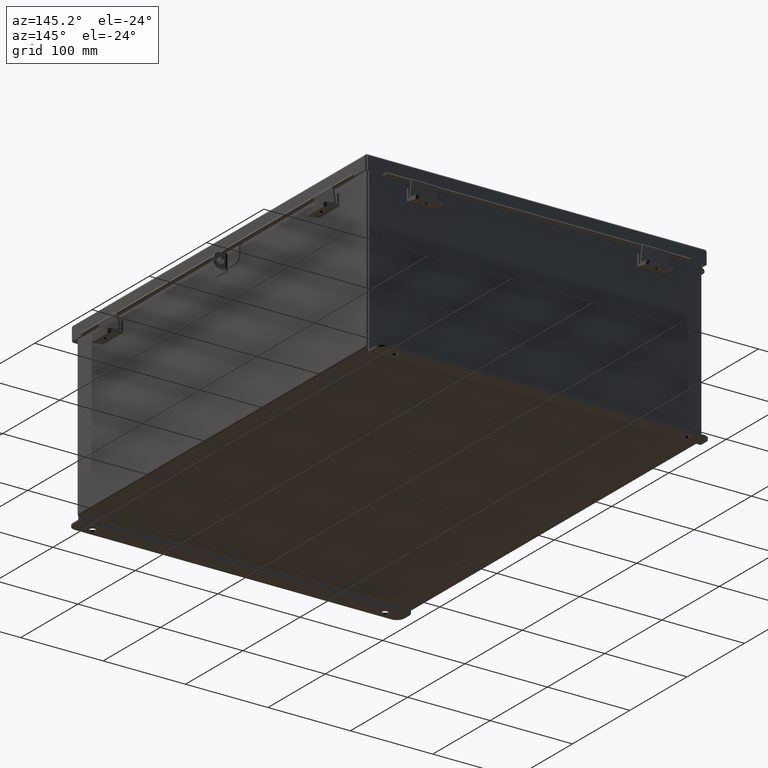
[diagram: clean part render]
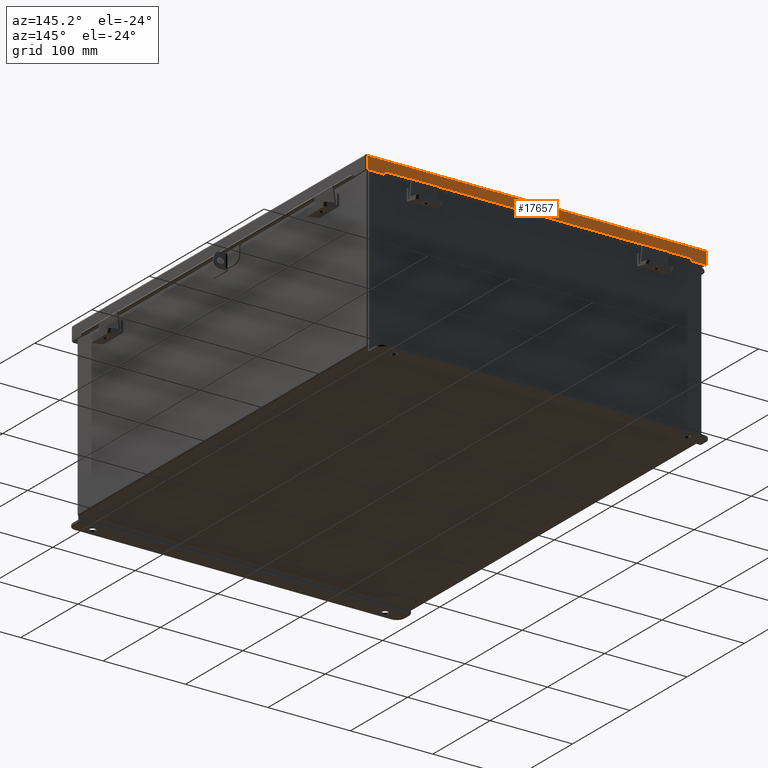
[diagram: same view with one face highlighted and labeled with its STEP entity id]
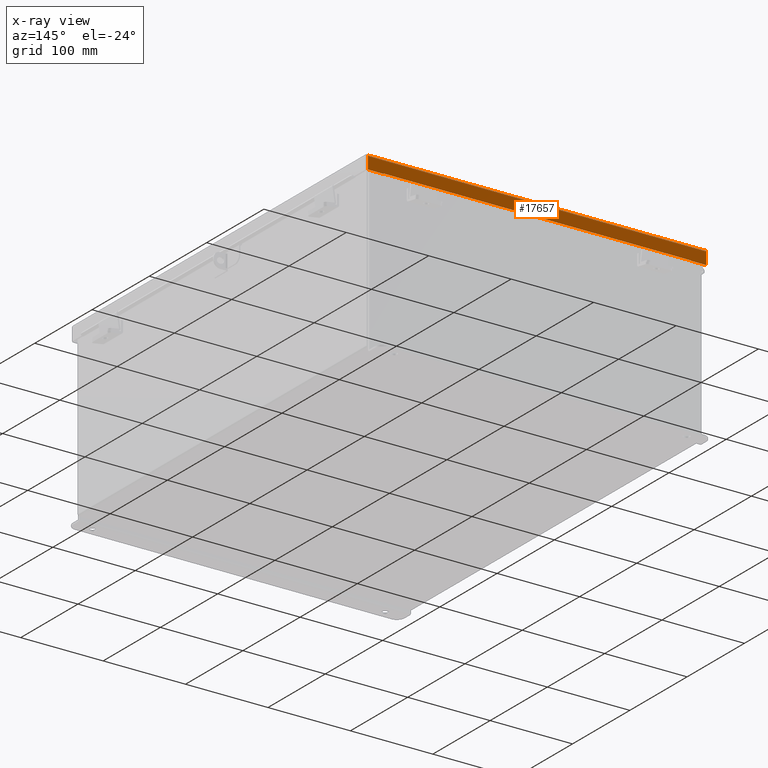
[diagram: x-ray of the same camera — body ghosted, the highlighted face saturated]
A machine part, auxiliary view. The second image highlights one B-rep face of the part: STEP entity #17657.
The next image is the same camera in x-ray: the body ghosted, the highlighted face saturated — about 0% of this face is hidden behind the body in this view.
In plain terms, the highlighted planar face has unit normal (-0, -1, -0).
Its self-contained STEP definition (entity closure, byte-faithful):
#336 = VERTEX_POINT ( 'NONE', #8786 ) ;
#386 = CARTESIAN_POINT ( 'NONE',  ( -7.324478932188124100, 10.15624999999998600, 0.5967115427318782100 ) ) ;
#499 = CARTESIAN_POINT ( 'NONE',  ( 8.074478932188135600, 10.15624999999998200, 0.01299999999999901400 ) ) ;
#624 = VERTEX_POINT ( 'NONE', #17983 ) ;
#649 = CARTESIAN_POINT ( 'NONE',  ( 0.0000000000000000000, 10.15624999999998200, -3.715313271383398100E-014 ) ) ;
#652 = LINE ( 'NONE', #7403, #19069 ) ;
#678 = EDGE_CURVE ( 'NONE', #2356, #9563, #6531, .T. ) ;
#1035 = DIRECTION ( 'NONE',  ( 1.000000000000000000, -2.239330294933626500E-032, -0.0000000000000000000 ) ) ;
#1370 = DIRECTION ( 'NONE',  ( -1.000000000000000000, -2.258600338820529900E-033, -0.0000000000000000000 ) ) ;
#2015 = EDGE_CURVE ( 'NONE', #624, #9563, #9717, .T. ) ;
#2145 = DIRECTION ( 'NONE',  ( 1.000000000000000000, 1.714005116931365200E-033, 4.186740220174599200E-018 ) ) ;
#2356 = VERTEX_POINT ( 'NONE', #499 ) ;
#2378 = LINE ( 'NONE', #16031, #11585 ) ;
#2473 = DIRECTION ( 'NONE',  ( 0.0000000000000000000, 3.569293475308526100E-015, 1.000000000000000000 ) ) ;
#2586 = EDGE_CURVE ( 'NONE', #3929, #2356, #2378, .T. ) ;
#2598 = CARTESIAN_POINT ( 'NONE',  ( -2.134256245050205600E-018, 10.15624999999998400, 0.6122999999999994000 ) ) ;
#2943 = VECTOR ( 'NONE', #14670, 39.37007874015748100 ) ;
#3929 = VERTEX_POINT ( 'NONE', #20326 ) ;
#4870 = VERTEX_POINT ( 'NONE', #21051 ) ;
#6531 = LINE ( 'NONE', #9438, #20337 ) ;
#6804 = LINE ( 'NONE', #386, #10838 ) ;
#7012 = CARTESIAN_POINT ( 'NONE',  ( -8.074478932188133800, 10.15624999999998400, 0.6122999999999994000 ) ) ;
#7403 = CARTESIAN_POINT ( 'NONE',  ( 7.324478932188133000, 10.15624999999998600, 0.6122999999999994000 ) ) ;
#7448 = CARTESIAN_POINT ( 'NONE',  ( -7.324478932188124100, 10.15624999999998400, 0.5967115427318782100 ) ) ;
#7543 = LINE ( 'NONE', #2598, #2943 ) ;
#7603 = DIRECTION ( 'NONE',  ( -2.477048074762977700E-032, -1.000000000000000000, 3.569293475308526100E-015 ) ) ;
#7639 = VERTEX_POINT ( 'NONE', #7012 ) ;
#8378 = VECTOR ( 'NONE', #2473, 39.37007874015748100 ) ;
#8725 = ORIENTED_EDGE ( 'NONE', *, *, #19770, .T. ) ;
#8786 = CARTESIAN_POINT ( 'NONE',  ( -7.324478932188130300, 10.15624999999998400, 0.6123000000000005100 ) ) ;
#8815 = ORIENTED_EDGE ( 'NONE', *, *, #2015, .T. ) ;
#9183 = CARTESIAN_POINT ( 'NONE',  ( -2.134256245050205600E-018, 10.15624999999998400, 0.6122999999999994000 ) ) ;
#9402 = VECTOR ( 'NONE', #1370, 39.37007874015748100 ) ;
#9438 = CARTESIAN_POINT ( 'NONE',  ( 8.074478932188135600, 10.15624999999998200, -1.092739197465705300E-015 ) ) ;
#9498 = EDGE_LOOP ( 'NONE', ( #21794, #8815, #10085, #14757, #18814, #8725, #9519, #19045 ) ) ;
#9519 = ORIENTED_EDGE ( 'NONE', *, *, #18654, .F. ) ;
#9563 = VERTEX_POINT ( 'NONE', #11036 ) ;
#9579 = EDGE_CURVE ( 'NONE', #3929, #7639, #22169, .T. ) ;
#9717 = LINE ( 'NONE', #9183, #10799 ) ;
#10065 = VERTEX_POINT ( 'NONE', #7448 ) ;
#10085 = ORIENTED_EDGE ( 'NONE', *, *, #678, .F. ) ;
#10799 = VECTOR ( 'NONE', #2145, 39.37007874015748100 ) ;
#10838 = VECTOR ( 'NONE', #12474, 39.37007874015748100 ) ;
#11036 = CARTESIAN_POINT ( 'NONE',  ( 8.074478932188135600, 10.15624999999998400, 0.6122999999999994000 ) ) ;
#11585 = VECTOR ( 'NONE', #1035, 39.37007874015748100 ) ;
#12474 = DIRECTION ( 'NONE',  ( -3.504962610060359200E-013, 0.0000000000000000000, 1.000000000000000000 ) ) ;
#12724 = PLANE ( 'NONE',  #16279 ) ;
#13560 = EDGE_CURVE ( 'NONE', #4870, #10065, #14001, .T. ) ;
#14001 = LINE ( 'NONE', #22110, #9402 ) ;
#14670 = DIRECTION ( 'NONE',  ( 1.000000000000000000, 1.714005116931365200E-033, 4.186740220174599200E-018 ) ) ;
#14757 = ORIENTED_EDGE ( 'NONE', *, *, #2586, .F. ) ;
#15704 = DIRECTION ( 'NONE',  ( -0.0000000000000000000, 3.569293475308526100E-015, 1.000000000000000000 ) ) ;
#16031 = CARTESIAN_POINT ( 'NONE',  ( 8.156250000000000000, 10.15624999999998200, 0.01300000000000010700 ) ) ;
#16279 = AXIS2_PLACEMENT_3D ( 'NONE', #649, #7603, #19713 ) ;
#17657 = ADVANCED_FACE ( 'NONE', ( #21705 ), #12724, .F. ) ;
#17983 = CARTESIAN_POINT ( 'NONE',  ( 7.324478932188133000, 10.15624999999998400, 0.6123000000000015100 ) ) ;
#18654 = EDGE_CURVE ( 'NONE', #10065, #336, #6804, .T. ) ;
#18814 = ORIENTED_EDGE ( 'NONE', *, *, #9579, .T. ) ;
#19045 = ORIENTED_EDGE ( 'NONE', *, *, #13560, .F. ) ;
#19069 = VECTOR ( 'NONE', #19510, 39.37007874015748100 ) ;
#19510 = DIRECTION ( 'NONE',  ( 0.0000000000000000000, 0.0000000000000000000, -1.000000000000000000 ) ) ;
#19713 = DIRECTION ( 'NONE',  ( 0.0000000000000000000, -3.569293475308526100E-015, -1.000000000000000000 ) ) ;
#19731 = CARTESIAN_POINT ( 'NONE',  ( -8.074478932188133800, 10.15624999999998200, -3.715313271383398100E-014 ) ) ;
#19770 = EDGE_CURVE ( 'NONE', #7639, #336, #7543, .T. ) ;
#20326 = CARTESIAN_POINT ( 'NONE',  ( -8.074478932188133800, 10.15624999999998200, 0.01300000000000010700 ) ) ;
#20337 = VECTOR ( 'NONE', #15704, 39.37007874015748100 ) ;
#21051 = CARTESIAN_POINT ( 'NONE',  ( 7.324478932188133000, 10.15624999999998400, 0.5967115427318793200 ) ) ;
#21675 = EDGE_CURVE ( 'NONE', #624, #4870, #652, .T. ) ;
#21705 = FACE_OUTER_BOUND ( 'NONE', #9498, .T. ) ;
#21794 = ORIENTED_EDGE ( 'NONE', *, *, #21675, .F. ) ;
#22110 = CARTESIAN_POINT ( 'NONE',  ( 7.324478932188130300, 10.15624999999998600, 0.5967115427318793200 ) ) ;
#22169 = LINE ( 'NONE', #19731, #8378 ) ;